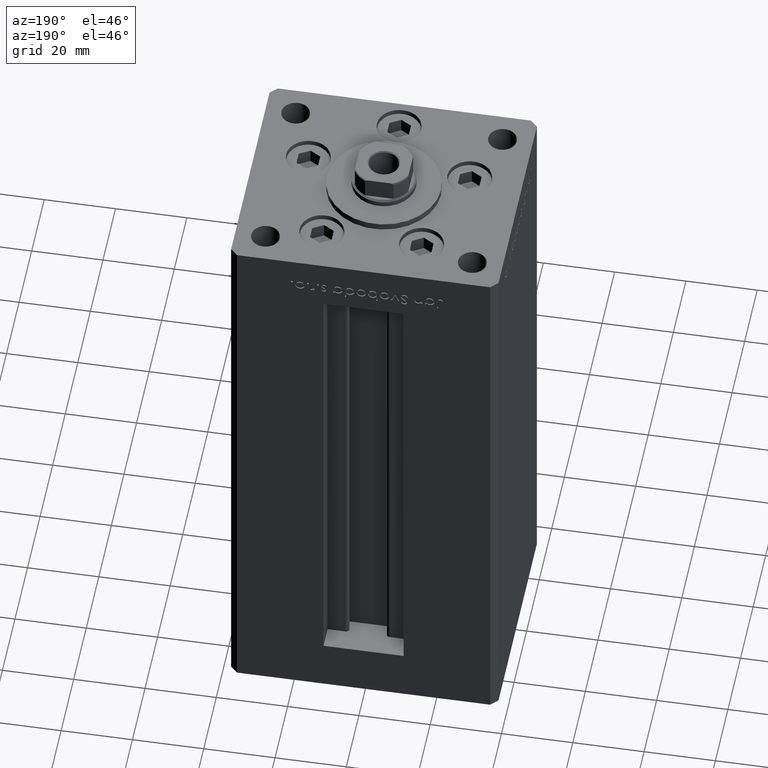
[diagram: clean part render]
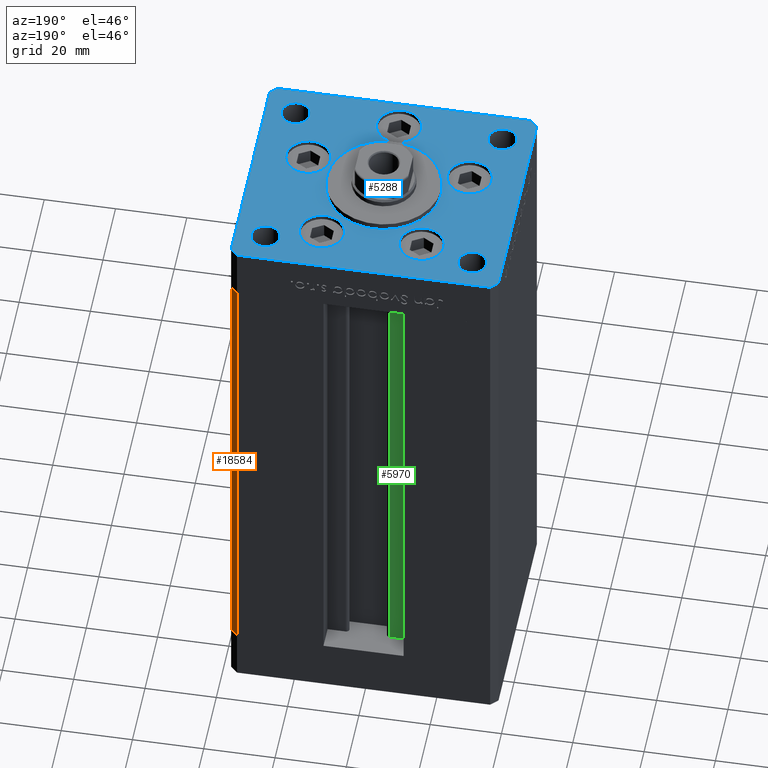
[diagram: same view with three faces highlighted in distinct colors, each labeled with its STEP entity id]
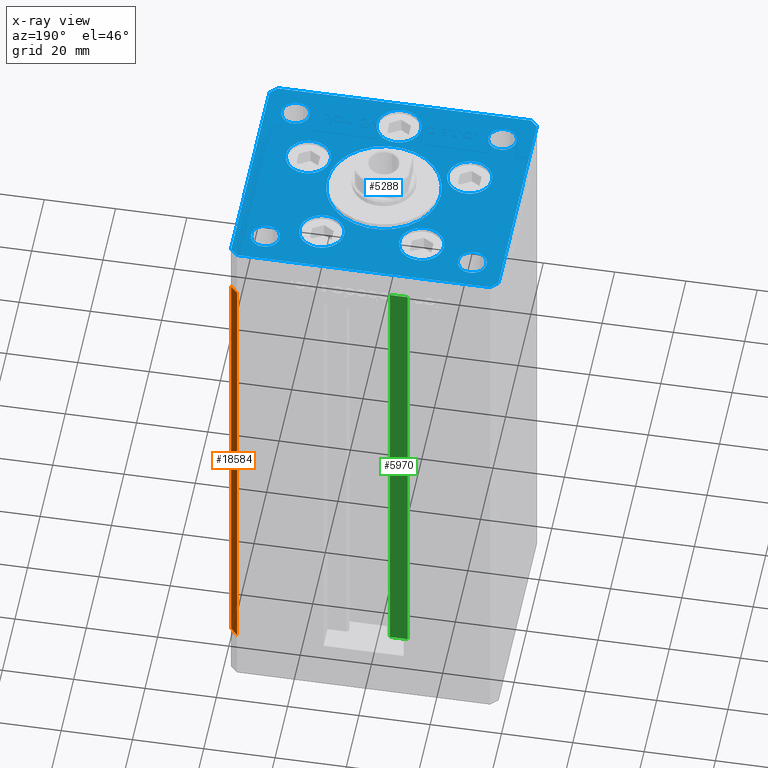
[diagram: x-ray of the same camera — body ghosted, the three highlighted faces saturated]
A machine part, auxiliary view with three faces highlighted in distinct colors.
The next image is the same camera in x-ray (body ghosted, the three faces saturated) — at least one of them is partly hidden behind the body in this view.
Their STEP definitions:

[orange] entity #18584 — the highlighted planar face has unit normal (0.7071, 0.7071, 0).
#2466 = AXIS2_PLACEMENT_3D ( 'NONE', #15577, #23766, #27722 ) ;
#3943 = VECTOR ( 'NONE', #4483, 1000.000000000000000 ) ;
#3951 = CARTESIAN_POINT ( 'NONE',  ( 37.50000000000000711, 30.50000000000000000, 136.0000000000000000 ) ) ;
#4020 = EDGE_CURVE ( 'NONE', #28264, #24197, #18633, .T. ) ;
#4483 = DIRECTION ( 'NONE',  ( -0.000000000000000000, -0.000000000000000000, -1.000000000000000000 ) ) ;
#5598 = VECTOR ( 'NONE', #49805, 1000.000000000000114 ) ;
#5823 = EDGE_CURVE ( 'NONE', #24197, #25227, #12125, .T. ) ;
#6576 = EDGE_LOOP ( 'NONE', ( #35424, #18990, #32438, #41311 ) ) ;
#12125 = LINE ( 'NONE', #3951, #3943 ) ;
#15577 = CARTESIAN_POINT ( 'NONE',  ( 35.50000000000000000, 32.49999999999999289, 136.0000000000000000 ) ) ;
#18421 = CARTESIAN_POINT ( 'NONE',  ( 37.50000000000000711, 30.50000000000000000, 0.000000000000000000 ) ) ;
#18584 = ADVANCED_FACE ( 'NONE', ( #51756 ), #19810, .T. ) ;
#18633 = LINE ( 'NONE', #34732, #5598 ) ;
#18990 = ORIENTED_EDGE ( 'NONE', *, *, #31098, .F. ) ;
#19810 = PLANE ( 'NONE',  #2466 ) ;
#19937 = VECTOR ( 'NONE', #42816, 1000.000000000000000 ) ;
#22626 = CARTESIAN_POINT ( 'NONE',  ( 35.50000000000000000, 32.49999999999999289, 136.0000000000000000 ) ) ;
#22752 = CARTESIAN_POINT ( 'NONE',  ( 35.50000000000000000, 32.49999999999999289, 136.0000000000000000 ) ) ;
#23766 = DIRECTION ( 'NONE',  ( 0.7071067811865451302, 0.7071067811865500152, -0.000000000000000000 ) ) ;
#24197 = VERTEX_POINT ( 'NONE', #39318 ) ;
#24549 = DIRECTION ( 'NONE',  ( 0.7071067811865500152, -0.7071067811865451302, 0.000000000000000000 ) ) ;
#25227 = VERTEX_POINT ( 'NONE', #18421 ) ;
#25562 = VECTOR ( 'NONE', #24549, 1000.000000000000114 ) ;
#26709 = LINE ( 'NONE', #22752, #19937 ) ;
#27722 = DIRECTION ( 'NONE',  ( -0.7071067811865500152, 0.7071067811865451302, 0.000000000000000000 ) ) ;
#28264 = VERTEX_POINT ( 'NONE', #22626 ) ;
#29253 = EDGE_CURVE ( 'NONE', #50162, #25227, #49100, .T. ) ;
#31098 = EDGE_CURVE ( 'NONE', #28264, #50162, #26709, .T. ) ;
#32438 = ORIENTED_EDGE ( 'NONE', *, *, #4020, .T. ) ;
#34732 = CARTESIAN_POINT ( 'NONE',  ( 35.50000000000000000, 32.49999999999999289, 136.0000000000000000 ) ) ;
#35424 = ORIENTED_EDGE ( 'NONE', *, *, #29253, .F. ) ;
#39318 = CARTESIAN_POINT ( 'NONE',  ( 37.50000000000000711, 30.50000000000000000, 136.0000000000000000 ) ) ;
#41311 = ORIENTED_EDGE ( 'NONE', *, *, #5823, .T. ) ;
#42816 = DIRECTION ( 'NONE',  ( -0.000000000000000000, -0.000000000000000000, -1.000000000000000000 ) ) ;
#44879 = CARTESIAN_POINT ( 'NONE',  ( 35.50000000000000000, 32.49999999999999289, 0.000000000000000000 ) ) ;
#49100 = LINE ( 'NONE', #44879, #25562 ) ;
#49805 = DIRECTION ( 'NONE',  ( 0.7071067811865500152, -0.7071067811865451302, 0.000000000000000000 ) ) ;
#50162 = VERTEX_POINT ( 'NONE', #50352 ) ;
#50352 = CARTESIAN_POINT ( 'NONE',  ( 35.50000000000000000, 32.49999999999999289, 0.000000000000000000 ) ) ;
#51756 = FACE_OUTER_BOUND ( 'NONE', #6576, .T. ) ;

[blue] entity #5288 — the highlighted planar face has unit normal (0, 0, 1).
#390 = CARTESIAN_POINT ( 'NONE',  ( -35.50000000000000711, 32.49999999999997868, 0.000000000000000000 ) ) ;
#701 = LINE ( 'NONE', #4895, #30536 ) ;
#783 = EDGE_LOOP ( 'NONE', ( #43572, #2184 ) ) ;
#851 = EDGE_CURVE ( 'NONE', #40875, #13527, #38352, .T. ) ;
#1010 = CARTESIAN_POINT ( 'NONE',  ( 22.62741699796953299, -8.000000000000000000, 0.000000000000000000 ) ) ;
#1084 = DIRECTION ( 'NONE',  ( 0.7071067811865463515, 0.7071067811865487940, 0.000000000000000000 ) ) ;
#1494 = ORIENTED_EDGE ( 'NONE', *, *, #33833, .T. ) ;
#1927 = LINE ( 'NONE', #25927, #21775 ) ;
#2184 = ORIENTED_EDGE ( 'NONE', *, *, #22013, .F. ) ;
#2558 = CARTESIAN_POINT ( 'NONE',  ( -37.50000000000001421, 30.50000000000000000, 0.000000000000000000 ) ) ;
#2721 = EDGE_LOOP ( 'NONE', ( #32202, #45297 ) ) ;
#2756 = ORIENTED_EDGE ( 'NONE', *, *, #12730, .T. ) ;
#2857 = CARTESIAN_POINT ( 'NONE',  ( -29.00000000000000000, 24.00000000000000711, 0.000000000000000000 ) ) ;
#2884 = EDGE_CURVE ( 'NONE', #11496, #29009, #4702, .T. ) ;
#2947 = ORIENTED_EDGE ( 'NONE', *, *, #851, .F. ) ;
#3039 = DIRECTION ( 'NONE',  ( 1.000000000000000000, 0.000000000000000000, 0.000000000000000000 ) ) ;
#3146 = EDGE_LOOP ( 'NONE', ( #28092, #36177 ) ) ;
#3516 = CARTESIAN_POINT ( 'NONE',  ( 13.99106857963324124, 19.50000000000000000, 0.000000000000000000 ) ) ;
#3534 = DIRECTION ( 'NONE',  ( 0.000000000000000000, 0.000000000000000000, 1.000000000000000000 ) ) ;
#3605 = AXIS2_PLACEMENT_3D ( 'NONE', #39694, #3534, #19636 ) ;
#3708 = CARTESIAN_POINT ( 'NONE',  ( 22.62741699796953299, -8.000000000000000000, 0.000000000000000000 ) ) ;
#4052 = VERTEX_POINT ( 'NONE', #38961 ) ;
#4629 = AXIS2_PLACEMENT_3D ( 'NONE', #44142, #20395, #19859 ) ;
#4687 = DIRECTION ( 'NONE',  ( 0.000000000000000000, 0.000000000000000000, 1.000000000000000000 ) ) ;
#4702 = CIRCLE ( 'NONE', #35896, 6.250000000000000000 ) ;
#4895 = CARTESIAN_POINT ( 'NONE',  ( -37.50000000000000000, -30.50000000000004263, 0.000000000000000000 ) ) ;
#4962 = VERTEX_POINT ( 'NONE', #45633 ) ;
#5288 = ADVANCED_FACE ( 'NONE', ( #34975, #51091, #7003, #47127, #18625, #15183, #43410, #10445, #10970, #35509, #51618 ), #26525, .T. ) ;
#5757 = ORIENTED_EDGE ( 'NONE', *, *, #19927, .T. ) ;
#5861 = CARTESIAN_POINT ( 'NONE',  ( -13.99106857963324124, 19.50000000000000000, 0.000000000000000000 ) ) ;
#6152 = VERTEX_POINT ( 'NONE', #9874 ) ;
#6282 = DIRECTION ( 'NONE',  ( 0.000000000000000000, 0.000000000000000000, 1.000000000000000000 ) ) ;
#6560 = DIRECTION ( 'NONE',  ( -0.7071067811865524577, 0.7071067811865426878, 0.000000000000000000 ) ) ;
#6642 = CIRCLE ( 'NONE', #7517, 4.000000000000000000 ) ;
#7003 = FACE_BOUND ( 'NONE', #41969, .T. ) ;
#7083 = ORIENTED_EDGE ( 'NONE', *, *, #2884, .F. ) ;
#7408 = AXIS2_PLACEMENT_3D ( 'NONE', #45603, #4687, #20284 ) ;
#7465 = DIRECTION ( 'NONE',  ( 1.000000000000000000, 1.172770800660376149E-15, 0.000000000000000000 ) ) ;
#7491 = CIRCLE ( 'NONE', #10840, 6.250000000000000000 ) ;
#7517 = AXIS2_PLACEMENT_3D ( 'NONE', #52126, #12254, #44467 ) ;
#7591 = VECTOR ( 'NONE', #9699, 1000.000000000000000 ) ;
#7882 = CARTESIAN_POINT ( 'NONE',  ( -29.00000000000000000, -23.99999999999999645, 0.000000000000000000 ) ) ;
#8048 = CARTESIAN_POINT ( 'NONE',  ( 0.000000000000000000, -6.938893903907228378E-15, 0.000000000000000000 ) ) ;
#8409 = CIRCLE ( 'NONE', #18522, 6.250000000000001776 ) ;
#9226 = AXIS2_PLACEMENT_3D ( 'NONE', #49887, #25075, #17685 ) ;
#9268 = AXIS2_PLACEMENT_3D ( 'NONE', #41928, #21859, #25822 ) ;
#9602 = EDGE_CURVE ( 'NONE', #21765, #4052, #47910, .T. ) ;
#9699 = DIRECTION ( 'NONE',  ( -1.000000000000000000, -1.954618001100627573E-16, 0.000000000000000000 ) ) ;
#9874 = CARTESIAN_POINT ( 'NONE',  ( 28.87741699796953654, -8.000000000000000000, 0.000000000000000000 ) ) ;
#9914 = EDGE_CURVE ( 'NONE', #49784, #29324, #49581, .T. ) ;
#10445 = FACE_BOUND ( 'NONE', #31999, .T. ) ;
#10510 = DIRECTION ( 'NONE',  ( 1.000000000000000000, 0.000000000000000000, 0.000000000000000000 ) ) ;
#10840 = AXIS2_PLACEMENT_3D ( 'NONE', #3516, #35458, #32291 ) ;
#10970 = FACE_BOUND ( 'NONE', #783, .T. ) ;
#11090 = CARTESIAN_POINT ( 'NONE',  ( -25.00000000000000000, 24.00000000000000711, 0.000000000000000000 ) ) ;
#11310 = DIRECTION ( 'NONE',  ( 0.000000000000000000, 0.000000000000000000, 1.000000000000000000 ) ) ;
#11392 = VERTEX_POINT ( 'NONE', #23443 ) ;
#11496 = VERTEX_POINT ( 'NONE', #16332 ) ;
#11607 = CARTESIAN_POINT ( 'NONE',  ( 29.00000000000000000, 24.00000000000000355, 0.000000000000000000 ) ) ;
#11657 = AXIS2_PLACEMENT_3D ( 'NONE', #39280, #6282, #10510 ) ;
#11734 = DIRECTION ( 'NONE',  ( 1.000000000000000000, 0.000000000000000000, 0.000000000000000000 ) ) ;
#11812 = CIRCLE ( 'NONE', #33713, 3.999999999999996447 ) ;
#11995 = ORIENTED_EDGE ( 'NONE', *, *, #20265, .T. ) ;
#12090 = VERTEX_POINT ( 'NONE', #12444 ) ;
#12254 = DIRECTION ( 'NONE',  ( -0.000000000000000000, -0.000000000000000000, -1.000000000000000000 ) ) ;
#12444 = CARTESIAN_POINT ( 'NONE',  ( 20.24106857963324302, 19.50000000000000000, 0.000000000000000000 ) ) ;
#12582 = VERTEX_POINT ( 'NONE', #16492 ) ;
#12730 = EDGE_CURVE ( 'NONE', #35026, #15543, #6642, .T. ) ;
#12939 = LINE ( 'NONE', #33524, #31179 ) ;
#13138 = VERTEX_POINT ( 'NONE', #11090 ) ;
#13330 = EDGE_CURVE ( 'NONE', #29009, #11496, #51356, .T. ) ;
#13526 = DIRECTION ( 'NONE',  ( 0.000000000000000000, 0.000000000000000000, 1.000000000000000000 ) ) ;
#13527 = VERTEX_POINT ( 'NONE', #17025 ) ;
#13687 = CIRCLE ( 'NONE', #3605, 4.000000000000000000 ) ;
#13938 = DIRECTION ( 'NONE',  ( -0.000000000000000000, -0.000000000000000000, -1.000000000000000000 ) ) ;
#14116 = CARTESIAN_POINT ( 'NONE',  ( 35.50000000000000000, 32.49999999999999289, 0.000000000000000000 ) ) ;
#14205 = EDGE_CURVE ( 'NONE', #29324, #49784, #8409, .T. ) ;
#15087 = DIRECTION ( 'NONE',  ( 0.000000000000000000, 0.000000000000000000, 1.000000000000000000 ) ) ;
#15183 = FACE_BOUND ( 'NONE', #48017, .T. ) ;
#15440 = DIRECTION ( 'NONE',  ( -0.000000000000000000, 0.000000000000000000, 1.000000000000000000 ) ) ;
#15543 = VERTEX_POINT ( 'NONE', #18322 ) ;
#15795 = ORIENTED_EDGE ( 'NONE', *, *, #38014, .T. ) ;
#15962 = EDGE_CURVE ( 'NONE', #49640, #25369, #11812, .T. ) ;
#16332 = CARTESIAN_POINT ( 'NONE',  ( -6.250000000000000000, -24.00000000000001066, 0.000000000000000000 ) ) ;
#16492 = CARTESIAN_POINT ( 'NONE',  ( 16.00000000000000355, -4.979459025271462852E-15, 0.000000000000000000 ) ) ;
#16810 = EDGE_CURVE ( 'NONE', #13527, #40875, #23515, .T. ) ;
#17025 = CARTESIAN_POINT ( 'NONE',  ( -20.24106857963324302, 19.50000000000000000, 0.000000000000000000 ) ) ;
#17347 = CARTESIAN_POINT ( 'NONE',  ( -22.62741699796953299, -8.000000000000000000, 0.000000000000000000 ) ) ;
#17423 = CIRCLE ( 'NONE', #23193, 4.000000000000000000 ) ;
#17632 = CARTESIAN_POINT ( 'NONE',  ( -7.741068579633241242, 19.50000000000000000, 0.000000000000000000 ) ) ;
#17661 = AXIS2_PLACEMENT_3D ( 'NONE', #3708, #19285, #39613 ) ;
#17685 = DIRECTION ( 'NONE',  ( -1.000000000000000000, 0.000000000000000000, 0.000000000000000000 ) ) ;
#17769 = DIRECTION ( 'NONE',  ( -0.7071067811865524577, -0.7071067811865426878, 0.000000000000000000 ) ) ;
#18232 = AXIS2_PLACEMENT_3D ( 'NONE', #39688, #47089, #27016 ) ;
#18315 = AXIS2_PLACEMENT_3D ( 'NONE', #8048, #40516, #11734 ) ;
#18322 = CARTESIAN_POINT ( 'NONE',  ( 25.00000000000000355, -23.99999999999999645, 0.000000000000000000 ) ) ;
#18341 = EDGE_LOOP ( 'NONE', ( #36601, #7083 ) ) ;
#18522 = AXIS2_PLACEMENT_3D ( 'NONE', #17347, #25522, #33437 ) ;
#18565 = EDGE_CURVE ( 'NONE', #6152, #27110, #42112, .T. ) ;
#18625 = FACE_BOUND ( 'NONE', #18341, .T. ) ;
#18647 = EDGE_CURVE ( 'NONE', #13138, #48474, #24402, .T. ) ;
#18658 = CARTESIAN_POINT ( 'NONE',  ( 35.50000000000000000, 32.49999999999999289, 0.000000000000000000 ) ) ;
#18687 = CARTESIAN_POINT ( 'NONE',  ( 37.50000000000000711, -30.49999999999992895, 0.000000000000000000 ) ) ;
#18740 = VECTOR ( 'NONE', #50863, 1000.000000000000000 ) ;
#19018 = AXIS2_PLACEMENT_3D ( 'NONE', #38969, #26803, #26291 ) ;
#19065 = VERTEX_POINT ( 'NONE', #41888 ) ;
#19164 = CARTESIAN_POINT ( 'NONE',  ( 33.00000000000000000, -23.99999999999999645, 0.000000000000000000 ) ) ;
#19285 = DIRECTION ( 'NONE',  ( 0.000000000000000000, 0.000000000000000000, 1.000000000000000000 ) ) ;
#19464 = AXIS2_PLACEMENT_3D ( 'NONE', #43848, #15087, #38859 ) ;
#19636 = DIRECTION ( 'NONE',  ( 1.000000000000000000, 0.000000000000000000, 0.000000000000000000 ) ) ;
#19859 = DIRECTION ( 'NONE',  ( 1.000000000000000000, 0.000000000000000000, 0.000000000000000000 ) ) ;
#19927 = EDGE_CURVE ( 'NONE', #4962, #28342, #12939, .T. ) ;
#20265 = EDGE_CURVE ( 'NONE', #21592, #41263, #37679, .T. ) ;
#20284 = DIRECTION ( 'NONE',  ( 1.000000000000000000, 0.000000000000000000, 0.000000000000000000 ) ) ;
#20395 = DIRECTION ( 'NONE',  ( 0.000000000000000000, 0.000000000000000000, 1.000000000000000000 ) ) ;
#20688 = CIRCLE ( 'NONE', #19018, 4.000000000000000000 ) ;
#21133 = CARTESIAN_POINT ( 'NONE',  ( 7.741068579633241242, 19.50000000000000000, 0.000000000000000000 ) ) ;
#21434 = CARTESIAN_POINT ( 'NONE',  ( -37.50000000000001421, 30.50000000000000000, 0.000000000000000000 ) ) ;
#21449 = ORIENTED_EDGE ( 'NONE', *, *, #30202, .F. ) ;
#21592 = VERTEX_POINT ( 'NONE', #14116 ) ;
#21765 = VERTEX_POINT ( 'NONE', #31774 ) ;
#21775 = VECTOR ( 'NONE', #17769, 1000.000000000000000 ) ;
#21859 = DIRECTION ( 'NONE',  ( 0.000000000000000000, 0.000000000000000000, 1.000000000000000000 ) ) ;
#22013 = EDGE_CURVE ( 'NONE', #25369, #49640, #34641, .T. ) ;
#22399 = EDGE_LOOP ( 'NONE', ( #2756, #1494 ) ) ;
#22517 = CIRCLE ( 'NONE', #18315, 16.00000000000000355 ) ;
#22759 = ORIENTED_EDGE ( 'NONE', *, *, #18565, .F. ) ;
#22927 = LINE ( 'NONE', #42463, #41075 ) ;
#22938 = EDGE_LOOP ( 'NONE', ( #47210, #15795, #5757, #42045, #31699, #11995, #50763, #26578 ) ) ;
#23110 = VERTEX_POINT ( 'NONE', #21133 ) ;
#23193 = AXIS2_PLACEMENT_3D ( 'NONE', #2857, #13938, #46411 ) ;
#23309 = CIRCLE ( 'NONE', #18232, 6.250000000000000000 ) ;
#23443 = CARTESIAN_POINT ( 'NONE',  ( -16.00000000000000355, -6.938893903907228378E-15, 0.000000000000000000 ) ) ;
#23484 = DIRECTION ( 'NONE',  ( 0.000000000000000000, 0.000000000000000000, 1.000000000000000000 ) ) ;
#23515 = CIRCLE ( 'NONE', #30271, 6.250000000000000000 ) ;
#23581 = CARTESIAN_POINT ( 'NONE',  ( -25.00000000000000355, -23.99999999999999645, 0.000000000000000000 ) ) ;
#24402 = CIRCLE ( 'NONE', #9226, 4.000000000000000000 ) ;
#25075 = DIRECTION ( 'NONE',  ( -0.000000000000000000, -0.000000000000000000, -1.000000000000000000 ) ) ;
#25242 = EDGE_CURVE ( 'NONE', #28342, #43734, #30296, .T. ) ;
#25369 = VERTEX_POINT ( 'NONE', #43821 ) ;
#25522 = DIRECTION ( 'NONE',  ( 0.000000000000000000, 0.000000000000000000, 1.000000000000000000 ) ) ;
#25822 = DIRECTION ( 'NONE',  ( 1.000000000000000000, 0.000000000000000000, 0.000000000000000000 ) ) ;
#25927 = CARTESIAN_POINT ( 'NONE',  ( -35.50000000000000711, 32.49999999999997868, 0.000000000000000000 ) ) ;
#26291 = DIRECTION ( 'NONE',  ( -1.000000000000000000, 0.000000000000000000, 0.000000000000000000 ) ) ;
#26525 = PLANE ( 'NONE',  #44416 ) ;
#26578 = ORIENTED_EDGE ( 'NONE', *, *, #26629, .T. ) ;
#26629 = EDGE_CURVE ( 'NONE', #30425, #28983, #38716, .T. ) ;
#26785 = EDGE_CURVE ( 'NONE', #28983, #19065, #701, .T. ) ;
#26803 = DIRECTION ( 'NONE',  ( -0.000000000000000000, -0.000000000000000000, -1.000000000000000000 ) ) ;
#27016 = DIRECTION ( 'NONE',  ( 1.000000000000000000, 0.000000000000000000, 0.000000000000000000 ) ) ;
#27097 = EDGE_CURVE ( 'NONE', #4052, #21765, #13687, .T. ) ;
#27110 = VERTEX_POINT ( 'NONE', #52094 ) ;
#27520 = LINE ( 'NONE', #43626, #51209 ) ;
#27904 = CARTESIAN_POINT ( 'NONE',  ( 37.50000000000000711, -30.49999999999992895, 0.000000000000000000 ) ) ;
#28092 = ORIENTED_EDGE ( 'NONE', *, *, #38712, .F. ) ;
#28295 = CARTESIAN_POINT ( 'NONE',  ( -37.50000000000000000, -30.50000000000004263, 0.000000000000000000 ) ) ;
#28342 = VERTEX_POINT ( 'NONE', #27904 ) ;
#28983 = VERTEX_POINT ( 'NONE', #28295 ) ;
#29009 = VERTEX_POINT ( 'NONE', #29859 ) ;
#29324 = VERTEX_POINT ( 'NONE', #38963 ) ;
#29859 = CARTESIAN_POINT ( 'NONE',  ( 6.250000000000000000, -24.00000000000001066, 0.000000000000000000 ) ) ;
#29886 = CARTESIAN_POINT ( 'NONE',  ( -28.87741699796953654, -8.000000000000000000, 0.000000000000000000 ) ) ;
#30202 = EDGE_CURVE ( 'NONE', #27110, #6152, #34250, .T. ) ;
#30271 = AXIS2_PLACEMENT_3D ( 'NONE', #5861, #13526, #41251 ) ;
#30296 = LINE ( 'NONE', #18687, #47350 ) ;
#30425 = VERTEX_POINT ( 'NONE', #21434 ) ;
#30536 = VECTOR ( 'NONE', #33151, 1000.000000000000000 ) ;
#31179 = VECTOR ( 'NONE', #1084, 1000.000000000000000 ) ;
#31699 = ORIENTED_EDGE ( 'NONE', *, *, #38424, .T. ) ;
#31774 = CARTESIAN_POINT ( 'NONE',  ( 24.99999999999999645, 24.00000000000000355, 0.000000000000000000 ) ) ;
#31999 = EDGE_LOOP ( 'NONE', ( #44521, #34137 ) ) ;
#32191 = EDGE_CURVE ( 'NONE', #48474, #13138, #17423, .T. ) ;
#32202 = ORIENTED_EDGE ( 'NONE', *, *, #18647, .T. ) ;
#32291 = DIRECTION ( 'NONE',  ( 1.000000000000000000, 0.000000000000000000, 0.000000000000000000 ) ) ;
#32841 = EDGE_LOOP ( 'NONE', ( #2947, #36786 ) ) ;
#33151 = DIRECTION ( 'NONE',  ( 0.7071067811865512365, -0.7071067811865439090, 0.000000000000000000 ) ) ;
#33174 = ORIENTED_EDGE ( 'NONE', *, *, #9914, .F. ) ;
#33437 = DIRECTION ( 'NONE',  ( 1.000000000000000000, 0.000000000000000000, 0.000000000000000000 ) ) ;
#33524 = CARTESIAN_POINT ( 'NONE',  ( 35.50000000000001421, -32.49999999999992184, 0.000000000000000000 ) ) ;
#33713 = AXIS2_PLACEMENT_3D ( 'NONE', #7882, #11310, #35596 ) ;
#33833 = EDGE_CURVE ( 'NONE', #15543, #35026, #20688, .T. ) ;
#34137 = ORIENTED_EDGE ( 'NONE', *, *, #9602, .F. ) ;
#34250 = CIRCLE ( 'NONE', #42643, 6.250000000000001776 ) ;
#34554 = ORIENTED_EDGE ( 'NONE', *, *, #14205, .F. ) ;
#34641 = CIRCLE ( 'NONE', #19464, 3.999999999999996447 ) ;
#34975 = FACE_BOUND ( 'NONE', #3146, .T. ) ;
#35026 = VERTEX_POINT ( 'NONE', #19164 ) ;
#35387 = EDGE_CURVE ( 'NONE', #23110, #12090, #23309, .T. ) ;
#35458 = DIRECTION ( 'NONE',  ( 0.000000000000000000, 0.000000000000000000, 1.000000000000000000 ) ) ;
#35509 = FACE_OUTER_BOUND ( 'NONE', #22938, .T. ) ;
#35596 = DIRECTION ( 'NONE',  ( 1.000000000000000000, 0.000000000000000000, 0.000000000000000000 ) ) ;
#35896 = AXIS2_PLACEMENT_3D ( 'NONE', #39789, #47456, #51928 ) ;
#36177 = ORIENTED_EDGE ( 'NONE', *, *, #39122, .F. ) ;
#36601 = ORIENTED_EDGE ( 'NONE', *, *, #13330, .F. ) ;
#36786 = ORIENTED_EDGE ( 'NONE', *, *, #16810, .F. ) ;
#37679 = LINE ( 'NONE', #18658, #7591 ) ;
#38014 = EDGE_CURVE ( 'NONE', #19065, #4962, #27520, .T. ) ;
#38352 = CIRCLE ( 'NONE', #4629, 6.250000000000000000 ) ;
#38424 = EDGE_CURVE ( 'NONE', #43734, #21592, #22927, .T. ) ;
#38712 = EDGE_CURVE ( 'NONE', #11392, #12582, #22517, .T. ) ;
#38716 = LINE ( 'NONE', #2558, #18740 ) ;
#38859 = DIRECTION ( 'NONE',  ( 1.000000000000000000, 0.000000000000000000, 0.000000000000000000 ) ) ;
#38961 = CARTESIAN_POINT ( 'NONE',  ( 33.00000000000000000, 24.00000000000000355, 0.000000000000000000 ) ) ;
#38963 = CARTESIAN_POINT ( 'NONE',  ( -16.37741699796953299, -8.000000000000000000, 0.000000000000000000 ) ) ;
#38969 = CARTESIAN_POINT ( 'NONE',  ( 29.00000000000000355, -23.99999999999999645, 0.000000000000000000 ) ) ;
#39122 = EDGE_CURVE ( 'NONE', #12582, #11392, #48734, .T. ) ;
#39205 = CARTESIAN_POINT ( 'NONE',  ( 0.000000000000000000, 0.000000000000000000, 0.000000000000000000 ) ) ;
#39280 = CARTESIAN_POINT ( 'NONE',  ( -22.62741699796953299, -8.000000000000000000, 0.000000000000000000 ) ) ;
#39457 = ORIENTED_EDGE ( 'NONE', *, *, #42927, .F. ) ;
#39613 = DIRECTION ( 'NONE',  ( 1.000000000000000000, 0.000000000000000000, 0.000000000000000000 ) ) ;
#39688 = CARTESIAN_POINT ( 'NONE',  ( 13.99106857963324124, 19.50000000000000000, 0.000000000000000000 ) ) ;
#39694 = CARTESIAN_POINT ( 'NONE',  ( 29.00000000000000000, 24.00000000000000355, 0.000000000000000000 ) ) ;
#39789 = CARTESIAN_POINT ( 'NONE',  ( 0.000000000000000000, -24.00000000000001066, 0.000000000000000000 ) ) ;
#40516 = DIRECTION ( 'NONE',  ( 0.000000000000000000, 0.000000000000000000, 1.000000000000000000 ) ) ;
#40693 = EDGE_CURVE ( 'NONE', #41263, #30425, #1927, .T. ) ;
#40875 = VERTEX_POINT ( 'NONE', #17632 ) ;
#41075 = VECTOR ( 'NONE', #6560, 1000.000000000000000 ) ;
#41107 = DIRECTION ( 'NONE',  ( 0.000000000000000000, 0.000000000000000000, 1.000000000000000000 ) ) ;
#41174 = AXIS2_PLACEMENT_3D ( 'NONE', #11607, #23484, #43548 ) ;
#41251 = DIRECTION ( 'NONE',  ( 1.000000000000000000, 0.000000000000000000, 0.000000000000000000 ) ) ;
#41263 = VERTEX_POINT ( 'NONE', #390 ) ;
#41888 = CARTESIAN_POINT ( 'NONE',  ( -35.50000000000001421, -32.50000000000000711, 0.000000000000000000 ) ) ;
#41928 = CARTESIAN_POINT ( 'NONE',  ( 0.000000000000000000, -24.00000000000001066, 0.000000000000000000 ) ) ;
#41969 = EDGE_LOOP ( 'NONE', ( #39457, #51516 ) ) ;
#42045 = ORIENTED_EDGE ( 'NONE', *, *, #25242, .T. ) ;
#42112 = CIRCLE ( 'NONE', #17661, 6.250000000000001776 ) ;
#42463 = CARTESIAN_POINT ( 'NONE',  ( 37.50000000000000711, 30.50000000000001421, 0.000000000000000000 ) ) ;
#42643 = AXIS2_PLACEMENT_3D ( 'NONE', #1010, #41107, #48780 ) ;
#42927 = EDGE_CURVE ( 'NONE', #12090, #23110, #7491, .T. ) ;
#43410 = FACE_BOUND ( 'NONE', #2721, .T. ) ;
#43548 = DIRECTION ( 'NONE',  ( 1.000000000000000000, 0.000000000000000000, 0.000000000000000000 ) ) ;
#43572 = ORIENTED_EDGE ( 'NONE', *, *, #15962, .F. ) ;
#43626 = CARTESIAN_POINT ( 'NONE',  ( -35.50000000000001421, -32.50000000000000711, 0.000000000000000000 ) ) ;
#43734 = VERTEX_POINT ( 'NONE', #45472 ) ;
#43821 = CARTESIAN_POINT ( 'NONE',  ( -32.99999999999999289, -23.99999999999999645, 0.000000000000000000 ) ) ;
#43848 = CARTESIAN_POINT ( 'NONE',  ( -29.00000000000000000, -23.99999999999999645, 0.000000000000000000 ) ) ;
#44142 = CARTESIAN_POINT ( 'NONE',  ( -13.99106857963324124, 19.50000000000000000, 0.000000000000000000 ) ) ;
#44416 = AXIS2_PLACEMENT_3D ( 'NONE', #39205, #15440, #3039 ) ;
#44467 = DIRECTION ( 'NONE',  ( -1.000000000000000000, 0.000000000000000000, 0.000000000000000000 ) ) ;
#44521 = ORIENTED_EDGE ( 'NONE', *, *, #27097, .F. ) ;
#45297 = ORIENTED_EDGE ( 'NONE', *, *, #32191, .T. ) ;
#45472 = CARTESIAN_POINT ( 'NONE',  ( 37.50000000000000711, 30.50000000000001421, 0.000000000000000000 ) ) ;
#45603 = CARTESIAN_POINT ( 'NONE',  ( 0.000000000000000000, -6.938893903907228378E-15, 0.000000000000000000 ) ) ;
#45633 = CARTESIAN_POINT ( 'NONE',  ( 35.50000000000001421, -32.49999999999992184, 0.000000000000000000 ) ) ;
#46411 = DIRECTION ( 'NONE',  ( -1.000000000000000000, 0.000000000000000000, 0.000000000000000000 ) ) ;
#47089 = DIRECTION ( 'NONE',  ( 0.000000000000000000, 0.000000000000000000, 1.000000000000000000 ) ) ;
#47127 = FACE_BOUND ( 'NONE', #51604, .T. ) ;
#47191 = DIRECTION ( 'NONE',  ( 0.000000000000000000, 1.000000000000000000, 0.000000000000000000 ) ) ;
#47210 = ORIENTED_EDGE ( 'NONE', *, *, #26785, .T. ) ;
#47350 = VECTOR ( 'NONE', #47191, 1000.000000000000000 ) ;
#47456 = DIRECTION ( 'NONE',  ( 0.000000000000000000, 0.000000000000000000, 1.000000000000000000 ) ) ;
#47910 = CIRCLE ( 'NONE', #41174, 4.000000000000000000 ) ;
#48017 = EDGE_LOOP ( 'NONE', ( #34554, #33174 ) ) ;
#48474 = VERTEX_POINT ( 'NONE', #50944 ) ;
#48734 = CIRCLE ( 'NONE', #7408, 16.00000000000000355 ) ;
#48780 = DIRECTION ( 'NONE',  ( 1.000000000000000000, 0.000000000000000000, 0.000000000000000000 ) ) ;
#49581 = CIRCLE ( 'NONE', #11657, 6.250000000000001776 ) ;
#49640 = VERTEX_POINT ( 'NONE', #23581 ) ;
#49784 = VERTEX_POINT ( 'NONE', #29886 ) ;
#49887 = CARTESIAN_POINT ( 'NONE',  ( -29.00000000000000000, 24.00000000000000711, 0.000000000000000000 ) ) ;
#50763 = ORIENTED_EDGE ( 'NONE', *, *, #40693, .T. ) ;
#50863 = DIRECTION ( 'NONE',  ( 2.275047181608926165E-16, -1.000000000000000000, 0.000000000000000000 ) ) ;
#50944 = CARTESIAN_POINT ( 'NONE',  ( -33.00000000000000000, 24.00000000000000711, 0.000000000000000000 ) ) ;
#51091 = FACE_BOUND ( 'NONE', #32841, .T. ) ;
#51209 = VECTOR ( 'NONE', #7465, 1000.000000000000000 ) ;
#51356 = CIRCLE ( 'NONE', #9268, 6.250000000000000000 ) ;
#51516 = ORIENTED_EDGE ( 'NONE', *, *, #35387, .F. ) ;
#51604 = EDGE_LOOP ( 'NONE', ( #22759, #21449 ) ) ;
#51618 = FACE_BOUND ( 'NONE', #22399, .T. ) ;
#51928 = DIRECTION ( 'NONE',  ( 1.000000000000000000, 0.000000000000000000, 0.000000000000000000 ) ) ;
#52094 = CARTESIAN_POINT ( 'NONE',  ( 16.37741699796953299, -8.000000000000000000, 0.000000000000000000 ) ) ;
#52126 = CARTESIAN_POINT ( 'NONE',  ( 29.00000000000000355, -23.99999999999999645, 0.000000000000000000 ) ) ;

[green] entity #5970 — the highlighted planar face has unit normal (0, -1, 0).
#1056 = DIRECTION ( 'NONE',  ( 0.000000000000000000, 0.000000000000000000, -1.000000000000000000 ) ) ;
#1400 = VERTEX_POINT ( 'NONE', #47976 ) ;
#3023 = LINE ( 'NONE', #26511, #7709 ) ;
#5970 = ADVANCED_FACE ( 'NONE', ( #16634 ), #28765, .F. ) ;
#6030 = EDGE_CURVE ( 'NONE', #16580, #42823, #47902, .T. ) ;
#6410 = EDGE_CURVE ( 'NONE', #50131, #42823, #16964, .T. ) ;
#7007 = DIRECTION ( 'NONE',  ( -0.000000000000000000, -0.000000000000000000, 1.000000000000000000 ) ) ;
#7257 = CARTESIAN_POINT ( 'NONE',  ( -11.25000000000000178, 25.99999999999999289, 0.000000000000000000 ) ) ;
#7709 = VECTOR ( 'NONE', #30742, 1000.000000000000000 ) ;
#10854 = CARTESIAN_POINT ( 'NONE',  ( -6.183333333334001480, 25.99999999999999289, 0.000000000000000000 ) ) ;
#12654 = CARTESIAN_POINT ( 'NONE',  ( -6.183333333334001480, 25.99999999999999289, 0.000000000000000000 ) ) ;
#13777 = LINE ( 'NONE', #10854, #14303 ) ;
#14303 = VECTOR ( 'NONE', #46240, 1000.000000000000000 ) ;
#15014 = EDGE_LOOP ( 'NONE', ( #32717, #21877, #43925, #48234 ) ) ;
#16580 = VERTEX_POINT ( 'NONE', #23313 ) ;
#16634 = FACE_OUTER_BOUND ( 'NONE', #15014, .T. ) ;
#16964 = LINE ( 'NONE', #25646, #30922 ) ;
#18259 = VECTOR ( 'NONE', #7007, 1000.000000000000000 ) ;
#21877 = ORIENTED_EDGE ( 'NONE', *, *, #23549, .F. ) ;
#22339 = CARTESIAN_POINT ( 'NONE',  ( -6.183333333334001480, 25.99999999999999289, 136.0000000000000000 ) ) ;
#23313 = CARTESIAN_POINT ( 'NONE',  ( -11.25000000000000178, 25.99999999999999289, 0.000000000000000000 ) ) ;
#23549 = EDGE_CURVE ( 'NONE', #16580, #1400, #3023, .T. ) ;
#25646 = CARTESIAN_POINT ( 'NONE',  ( 0.000000000000000000, 25.99999999999999289, 136.0000000000000000 ) ) ;
#26511 = CARTESIAN_POINT ( 'NONE',  ( -6.183333333334001480, 25.99999999999999289, 0.000000000000000000 ) ) ;
#28765 = PLANE ( 'NONE',  #40194 ) ;
#30742 = DIRECTION ( 'NONE',  ( 1.000000000000000000, -0.000000000000000000, -0.000000000000000000 ) ) ;
#30922 = VECTOR ( 'NONE', #41744, 1000.000000000000000 ) ;
#32717 = ORIENTED_EDGE ( 'NONE', *, *, #45647, .F. ) ;
#36243 = CARTESIAN_POINT ( 'NONE',  ( -11.25000000000000178, 25.99999999999999289, 136.0000000000000000 ) ) ;
#40194 = AXIS2_PLACEMENT_3D ( 'NONE', #12654, #48828, #1056 ) ;
#41744 = DIRECTION ( 'NONE',  ( -1.000000000000000000, 0.000000000000000000, 0.000000000000000000 ) ) ;
#42823 = VERTEX_POINT ( 'NONE', #36243 ) ;
#43925 = ORIENTED_EDGE ( 'NONE', *, *, #6030, .T. ) ;
#45647 = EDGE_CURVE ( 'NONE', #1400, #50131, #13777, .T. ) ;
#46240 = DIRECTION ( 'NONE',  ( -0.000000000000000000, -0.000000000000000000, 1.000000000000000000 ) ) ;
#47902 = LINE ( 'NONE', #7257, #18259 ) ;
#47976 = CARTESIAN_POINT ( 'NONE',  ( -6.183333333334001480, 25.99999999999999289, 0.000000000000000000 ) ) ;
#48234 = ORIENTED_EDGE ( 'NONE', *, *, #6410, .F. ) ;
#48828 = DIRECTION ( 'NONE',  ( 0.000000000000000000, -1.000000000000000000, -0.000000000000000000 ) ) ;
#50131 = VERTEX_POINT ( 'NONE', #22339 ) ;